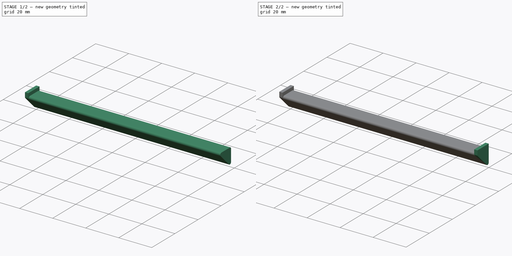
[diagram: build sequence overview — one tinted view per stage of 2, left to right]
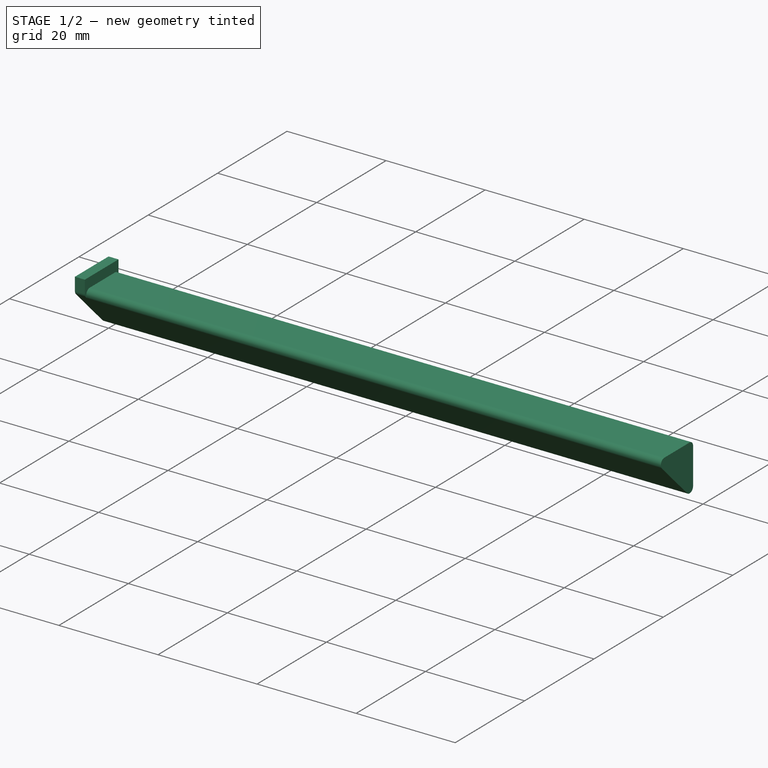
[diagram: stage 1 of 2 — iso view after this stage's code; geometry added in this stage tinted green]
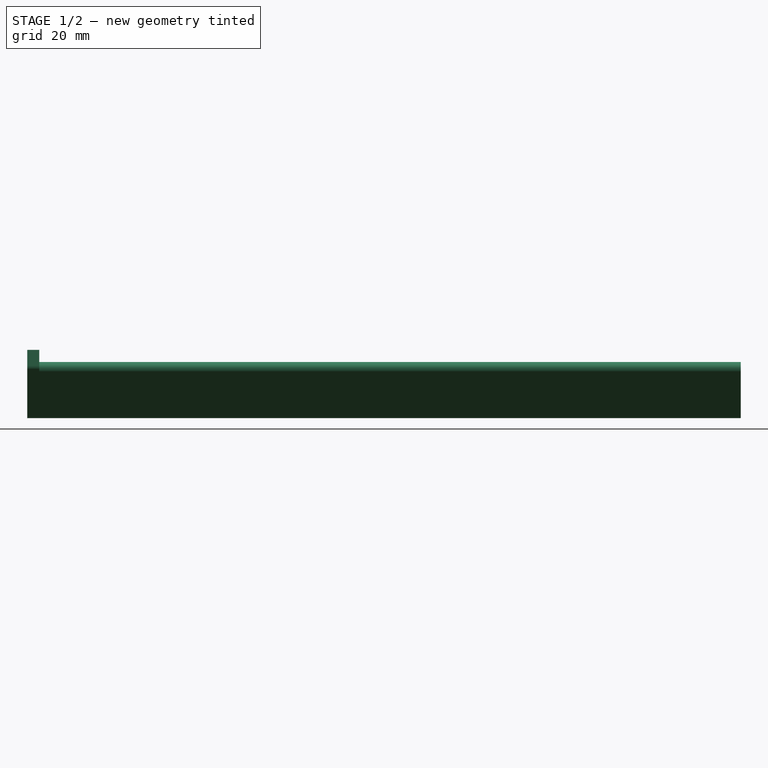
[diagram: stage 1 of 2 — front view after this stage's code; geometry added in this stage tinted green]
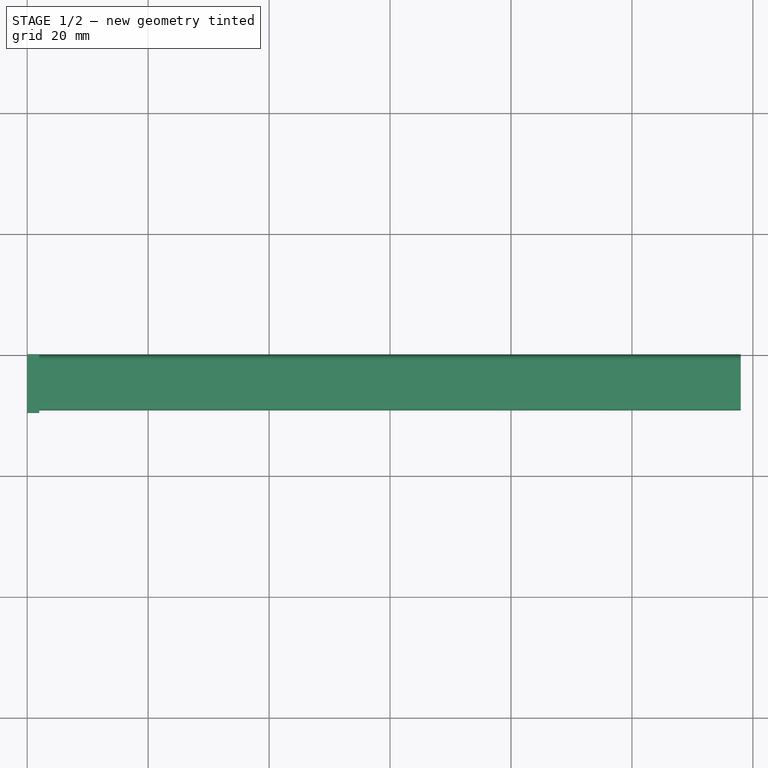
[diagram: stage 1 of 2 — top view after this stage's code; geometry added in this stage tinted green]
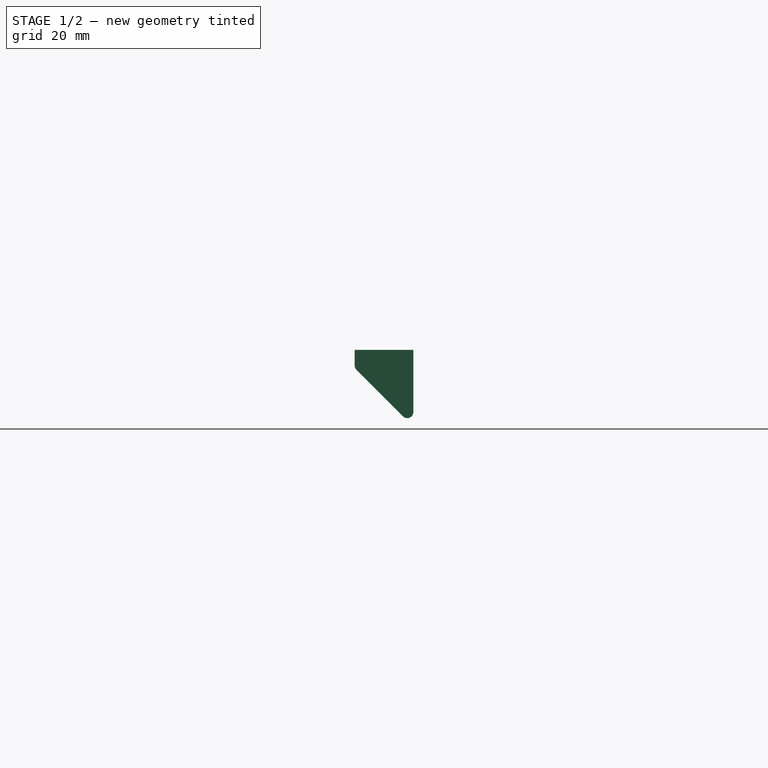
[diagram: stage 1 of 2 — right view after this stage's code; geometry added in this stage tinted green]
FCSTD DOCUMENT  (FreeCAD 1.0R39109 (Git))
Label: 01_Arm_v2
License: All rights reserved
LicenseURL: https://en.wikipedia.org/wiki/All_rights_reserved
objects: Sketcher::SketchObject×3, PartDesign::Pad×3, Spreadsheet::Sheet×1, PartDesign::Body×1
note: 16 computed .brp shape members not serialized (recipe doc carries the construction recipe); baked Part::Feature solids carry a one-line shape summary decoded from their .brp

FEATURE [Spreadsheet::Sheet] Spreadsheet  label="Parameters"
  cells = A1='hook_length; B1(hook_length)=2; A2='hook_vertical_length; B2(hook_vertical_length)=10.3; A3='hook_horizontal_length; B3(hook_horizontal_length)=9.7; A4='hook_angled_line_x; B4(hook_angled_line_x)=1.707; A5='hook_angled_line_y; B5(hook_angled_line_y)=10.992; A6='hook_vertical_small_length; B6(hook_vertical_small_length)=2.59; A7='hook_angled_line_length; B7(hook_angled_line_length)=10.889; A8='hook_angled_line_angle; B8(hook_angled_line_angle)=-45; A9='arm_xy_line_length; B9(arm_xy_line_length)=7.3; A10='peg_distance; B10(peg_distance)=3; A11='distance_between_peg; B11(distance_between_peg)=40; A12='calculated_arm_length; B12(calculated_arm_length)==peg_distance * distance_between_peg - 4
FEATURE [Sketcher::SketchObject] Sketch
  ArcFitTolerance = 1e-06
  AttachmentSupport = -> [YZ_Plane]
  FullyConstrained = true
  MakeInternals = false
  MapMode = 5
  Placement = pos=(0,0,0) rot=(0.57735,0.57735,0.57735;2.0944rad)
  expr: Constraints[0] = <<Parameters>>.hook_horizontal_length
  expr: Constraints[18] = <<Parameters>>.hook_angled_line_y
  expr: Constraints[19] = <<Parameters>>.hook_angled_line_x
  expr: Constraints[2] = <<Parameters>>.hook_vertical_length
  expr: Constraints[5] = <<Parameters>>.hook_vertical_small_length
  expr: Constraints[8] = <<Parameters>>.hook_angled_line_length
  expr: Constraints[9] = <<Parameters>>.hook_angled_line_angle
  sketch-geometry (6):
    g0: LineSegment StartX=-9.7 StartY=0 StartZ=0 EndX=0 EndY=0 EndZ=0
    g1: LineSegment StartX=0 StartY=0 StartZ=0 EndX=0 EndY=-10.3 EndZ=0
    g2: LineSegment StartX=-9.7 StartY=0 StartZ=0 EndX=-9.7 EndY=-2.59 EndZ=0
    g3: LineSegment StartX=-9.40669 StartY=-3.29231 StartZ=0 EndX=-1.707 EndY=-10.992 EndZ=0
    g4: ArcOfCircle CenterX=-8.7 CenterY=-2.58477 CenterZ=0 NormalX=0 NormalY=0 NormalZ=1 AngleXU=0 Radius=1.00001 StartAngle=3.14683 EndAngle=3.9276
    g5: ArcOfCircle CenterX=-1 CenterY=-10.2846 CenterZ=0 NormalX=0 NormalY=0 NormalZ=1 AngleXU=0 Radius=1.00012 StartAngle=3.92726 EndAngle=6.26781
  constraints (20):
    c: Distance(g0) = 9.7
    c: Horizontal(g0)
    c: Distance(g1) = 10.3
    c: Vertical(g1)
    c: Coincident(g1,g0)
    c: Distance(g2) = 2.59
    c: Vertical(g2)
    c: Coincident(g2,g0)
    c: Distance(g3) = 10.889
    c: Angle(g-1,g3) = -0.785398
    c: DistanceY(g0,g-1) = 0
    c: DistanceX(g0,g-1) = 0
    c: Coincident(g4,g2)
    c: Coincident(g4,g3)
    c: DistanceX(g2,g4) = 1
    c: Coincident(g5,g3)
    c: Coincident(g5,g1)
    c: DistanceX(g5,g1) = 1
    c: DistanceY(g3,g0) = 10.992
    c: DistanceX(g3,g0) = 1.707
FEATURE [PartDesign::Pad] Pad
  Direction = (1,0,0)
  Length = 2
  Length2 = 10
  Placement = pos=(0,0,0) rot=(1,1,1;2.0944rad)
  Profile = -> Sketch
  ReferenceAxis = -> Sketch [N_Axis]
  Refine = true
  Suppressed = false
  Type = 0
  expr: Length = <<Parameters>>.hook_length
FEATURE [Sketcher::SketchObject] Sketch001
  ArcFitTolerance = 1e-06
  AttachmentSupport = -> [Pad]
  FullyConstrained = true
  MakeInternals = false
  MapMode = 5
  Placement = pos=(2,-4e-16,2e-16) rot=(0.57735,0.57735,0.57735;2.0944rad)
  expr: Constraints[0] = <<Parameters>>.arm_xy_line_length
  expr: Constraints[10] = <<Parameters>>.hook_angled_line_angle
  expr: Constraints[11] = <<Parameters>>.hook_angled_line_y
  expr: Constraints[12] = <<Parameters>>.hook_angled_line_x
  expr: Constraints[4] = <<Parameters>>.arm_xy_line_length
  sketch-geometry (7):
    g0: LineSegment StartX=0 StartY=-3 StartZ=0 EndX=0 EndY=-10.3 EndZ=0
    g1: LineSegment StartX=-8.3 StartY=-2 StartZ=0 EndX=-1 EndY=-2 EndZ=0
    g2: GeomPoint [constr] X=-1 Y=-3 Z=0
    g3: LineSegment StartX=-8.9902 StartY=-3.7088 StartZ=0 EndX=-1.707 EndY=-10.992 EndZ=0
    g4: ArcOfCircle CenterX=-1 CenterY=-3 CenterZ=0 NormalX=0 NormalY=0 NormalZ=1 AngleXU=0 Radius=1 StartAngle=0 EndAngle=1.5708
    g5: ArcOfCircle CenterX=-1 CenterY=-10.2846 CenterZ=0 NormalX=0 NormalY=0 NormalZ=1 AngleXU=0 Radius=1.00012 StartAngle=3.92726 EndAngle=6.26781
    g6: ArcOfCircle CenterX=-8.28462 CenterY=-3 CenterZ=0 NormalX=0 NormalY=0 NormalZ=1 AngleXU=0 Radius=1.00012 StartAngle=1.58617 EndAngle=3.92927
  constraints (22):
    c: Distance(g0) = 7.3
    c: Vertical(g0)
    c: DistanceY(g0,g-1) = 3
    c: DistanceX(g0,g-1) = 0
    c: Distance(g1) = 7.3
    c: Horizontal(g1)
    c: Vertical(g2,g1)
    c: Horizontal(g2,g0)
    c: DistanceY(g2,g1) = 1
    c: Distance(g3) = 10.3
    c: Angle(g-1,g3) = -0.785398
    c: DistanceY(g3,g-1) = 10.992
    c: DistanceX(g3,g-1) = 1.707
    c: Coincident(g4,g1)
    c: Coincident(g4,g0)
    c: Coincident(g4,g2)
    c: Coincident(g5,g3)
    c: Coincident(g5,g0)
    c: DistanceX(g5,g0) = 1
    c: Coincident(g6,g1)
    c: Coincident(g6,g3)
    c: DistanceY(g6,g1) = 1
FEATURE [PartDesign::Pad] Pad001
  BaseFeature = -> Pad
  Direction = (1,0,0)
  Length = 116
  Length2 = 10
  Placement = pos=(0,0,0) rot=(1,1,1;2.0944rad)
  Profile = -> Sketch001
  ReferenceAxis = -> Sketch001 [N_Axis]
  Refine = true
  Suppressed = false
  Type = 0
  expr: Length = <<Parameters>>.calculated_arm_length
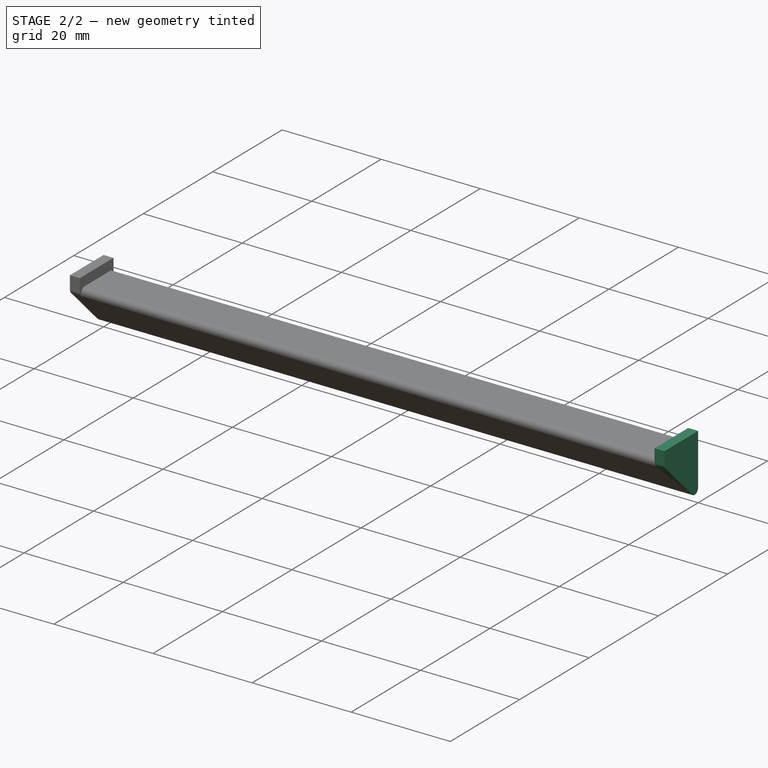
[diagram: stage 2 of 2 — iso view after this stage's code; geometry added in this stage tinted green]
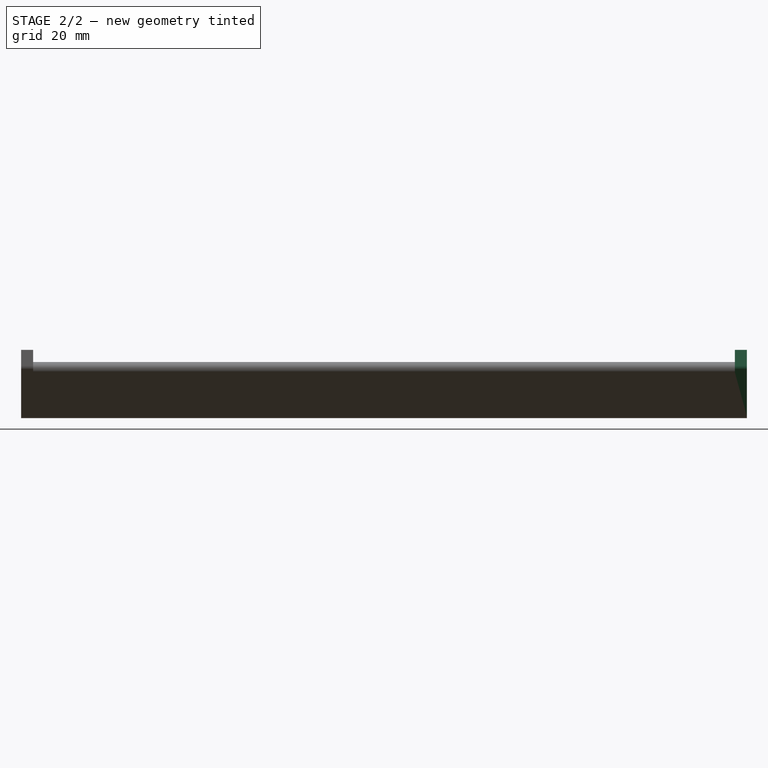
[diagram: stage 2 of 2 — front view after this stage's code; geometry added in this stage tinted green]
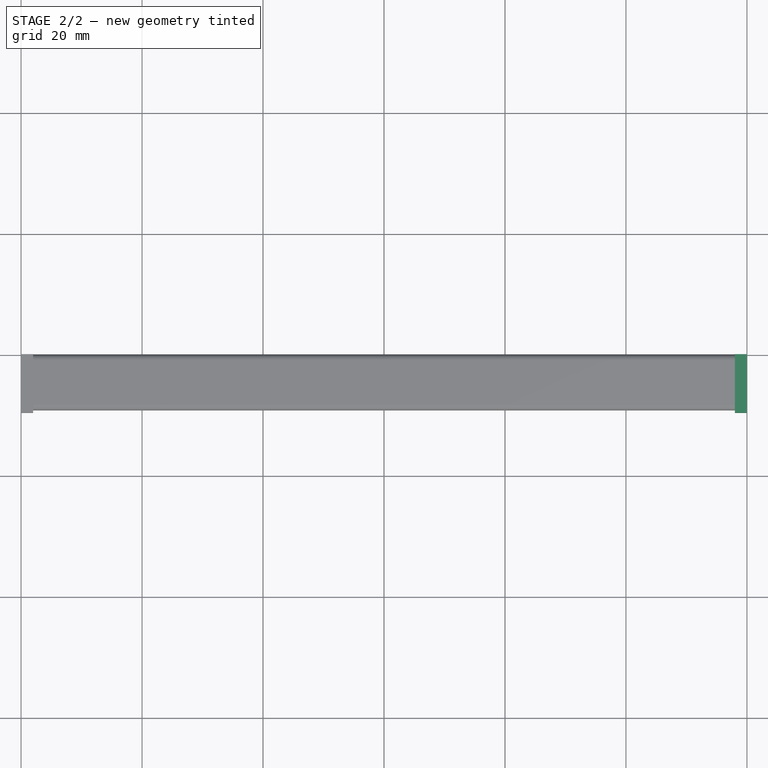
[diagram: stage 2 of 2 — top view after this stage's code; geometry added in this stage tinted green]
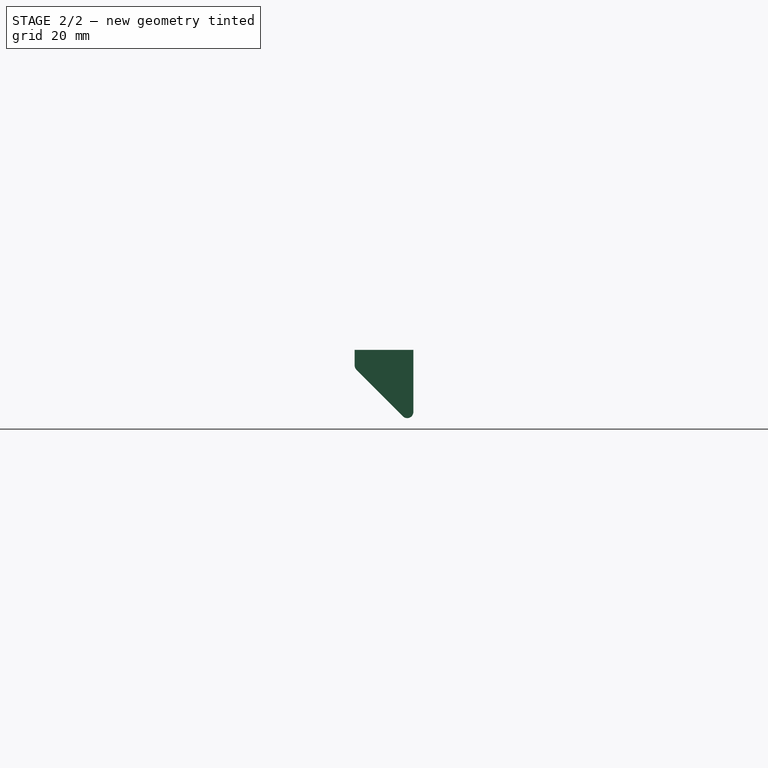
[diagram: stage 2 of 2 — right view after this stage's code; geometry added in this stage tinted green]
FEATURE [Sketcher::SketchObject] Sketch002
  ArcFitTolerance = 1e-06
  AttachmentSupport = -> [Pad001]
  FullyConstrained = true
  MakeInternals = false
  MapMode = 5
  Placement = pos=(118,-2.62e-14,1.31e-14) rot=(0.57735,0.57735,0.57735;2.0944rad)
  expr: Constraints[0] = 10.3 mm
  expr: Constraints[10] = <<Parameters>>.hook_vertical_small_length
  expr: Constraints[2] = <<Parameters>>.hook_horizontal_length
  expr: Constraints[6] = <<Parameters>>.hook_angled_line_length
  expr: Constraints[7] = -<<Parameters>>.hook_angled_line_angle
  expr: Constraints[8] = <<Parameters>>.hook_angled_line_y
  expr: Constraints[9] = <<Parameters>>.hook_angled_line_x
  sketch-geometry (6):
    g0: LineSegment StartX=-2.98e-14 StartY=0 StartZ=0 EndX=-2.98e-14 EndY=-10.3 EndZ=0
    g1: LineSegment StartX=-2.98e-14 StartY=0 StartZ=0 EndX=-9.7 EndY=0 EndZ=0
    g2: LineSegment StartX=-9.40669 StartY=-3.29231 StartZ=0 EndX=-1.707 EndY=-10.992 EndZ=0
    g3: LineSegment StartX=-9.7 StartY=0 StartZ=0 EndX=-9.7 EndY=-2.59 EndZ=0
    g4: ArcOfCircle CenterX=-8.7 CenterY=-2.58477 CenterZ=0 NormalX=0 NormalY=0 NormalZ=1 AngleXU=0 Radius=1.00001 StartAngle=3.14683 EndAngle=3.9276
    g5: ArcOfCircle CenterX=-1 CenterY=-10.2846 CenterZ=0 NormalX=0 NormalY=0 NormalZ=1 AngleXU=0 Radius=1.00012 StartAngle=3.92726 EndAngle=6.26781
  constraints (19):
    c: Distance(g0) = 10.3
    c: Vertical(g0)
    c: Distance(g1) = 9.7
    c: Horizontal(g1)
    c: Coincident(g1,g0)
    c: Coincident(g0,g-1)
    c: Distance(g2) = 10.889
    c: Angle(g2,g-1) = 0.785398
    c: DistanceY(g2,g0) = 10.992
    c: DistanceX(g2,g0) = 1.707
    c: Distance(g3) = 2.59
    c: Coincident(g3,g1)
    c: Vertical(g3)
    c: Coincident(g4,g3)
    c: Coincident(g4,g2)
    c: DistanceX(g3,g4) = 1
    c: Coincident(g5,g2)
    c: Coincident(g5,g0)
    c: DistanceX(g5,g0) = 1
FEATURE [PartDesign::Pad] Pad002
  BaseFeature = -> Pad001
  Direction = (1,0,0)
  Length = 2
  Length2 = 10
  Placement = pos=(0,0,0) rot=(1,1,1;2.0944rad)
  Profile = -> Sketch002
  ReferenceAxis = -> Sketch002 [N_Axis]
  Refine = true
  Suppressed = false
  Type = 0
  expr: Length = <<Parameters>>.hook_length
FEATURE [PartDesign::Body] Body
  AllowCompound = false
  Group = -> [Sketch,Pad,Sketch001,Pad001,Sketch002,Pad002]
  Origin = -> Origin
  Tip = -> Pad002
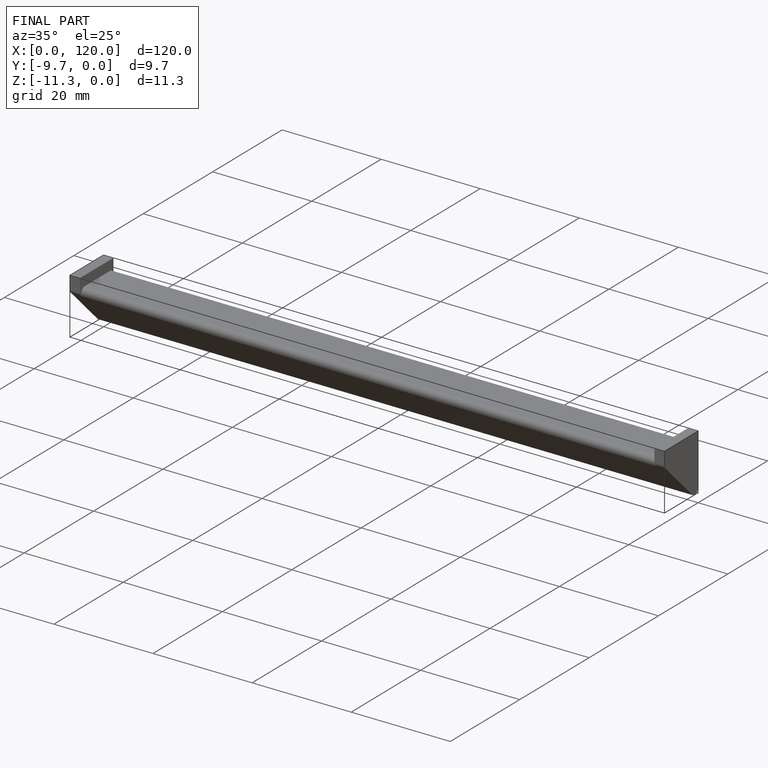
[diagram: finished part — iso view with bounding-box wireframe]
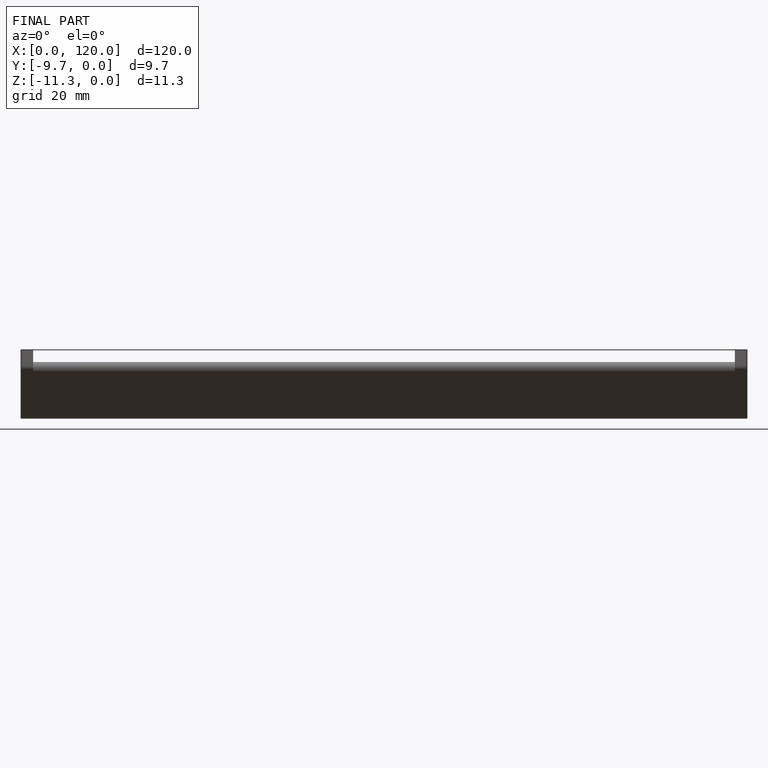
[diagram: finished part — front view with bounding-box wireframe]
